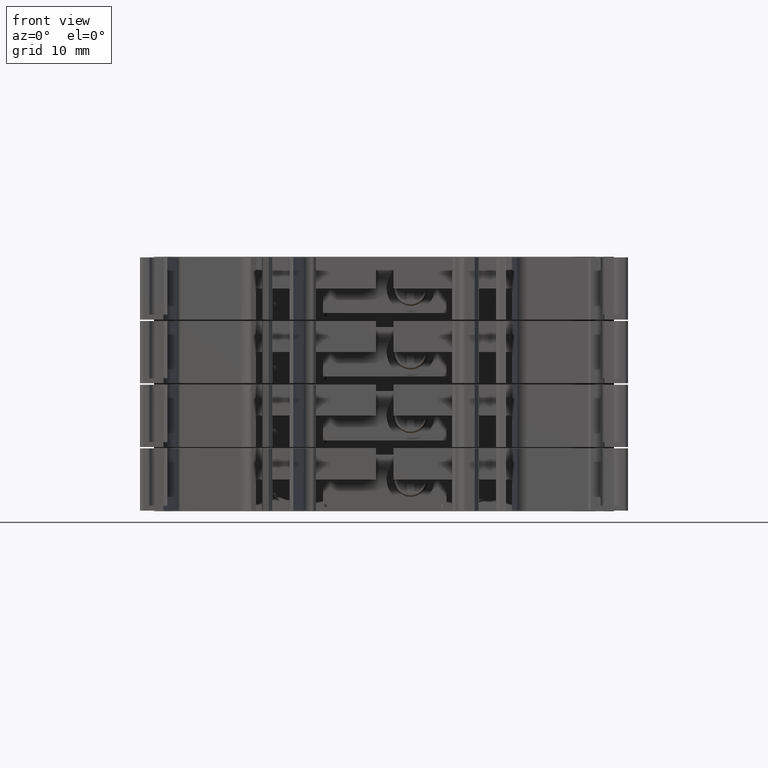
[diagram: clean part render]
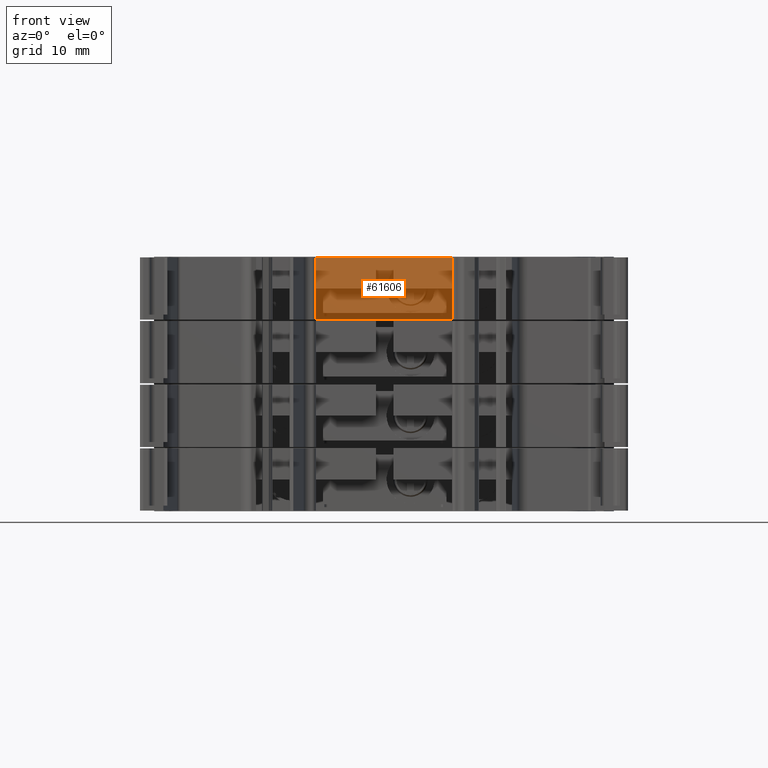
[diagram: same view with one face highlighted and labeled with its STEP entity id]
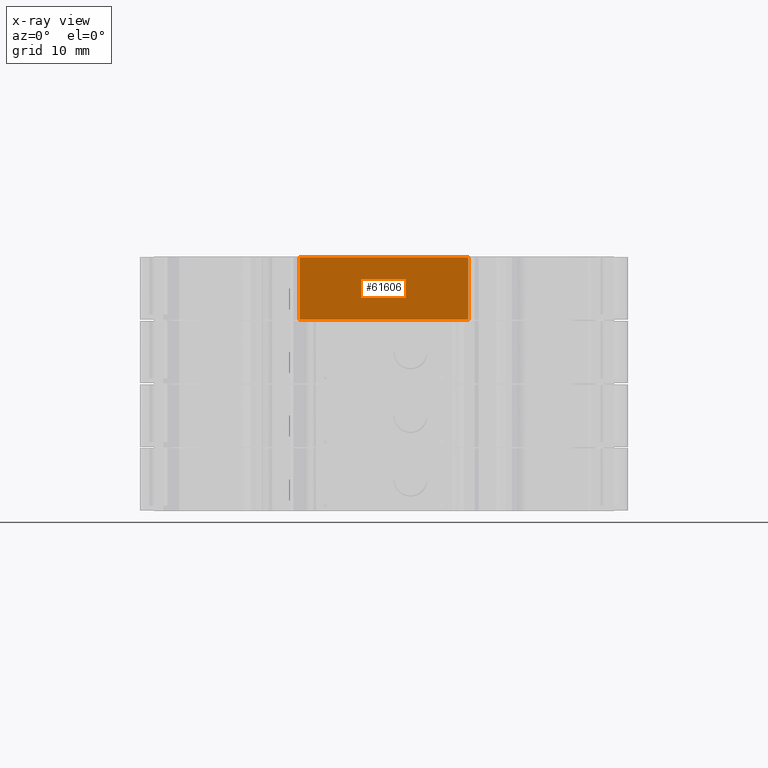
[diagram: x-ray of the same camera — body ghosted, the highlighted face saturated]
A machine part, front view. The second image highlights one B-rep face of the part: STEP entity #61606.
The next image is the same camera in x-ray: the body ghosted, the highlighted face saturated — about 0% of this face is hidden behind the body in this view.
In plain terms, the highlighted planar face has unit normal (0, 1, 0).
Its self-contained STEP definition (entity closure, byte-faithful):
#3836 = VECTOR ( 'NONE', #41808, 1000.000000000000000 ) ;
#3870 = VECTOR ( 'NONE', #42376, 1000.000000000000000 ) ;
#3883 = VECTOR ( 'NONE', #42189, 1000.000000000000000 ) ;
#3920 = VECTOR ( 'NONE', #42168, 1000.000000000000000 ) ;
#7336 = ORIENTED_EDGE ( 'NONE', *, *, #38829, .T. ) ;
#7340 = ORIENTED_EDGE ( 'NONE', *, *, #41214, .T. ) ;
#7371 = ORIENTED_EDGE ( 'NONE', *, *, #38767, .T. ) ;
#7383 = ORIENTED_EDGE ( 'NONE', *, *, #38822, .T. ) ;
#7613 = ORIENTED_EDGE ( 'NONE', *, *, #38864, .T. ) ;
#17388 = EDGE_LOOP ( 'NONE', ( #7371, #7613, #7383, #7336, #7340 ) ) ;
#27636 = CARTESIAN_POINT ( 'NONE',  ( 472.2252140059309800, 109.5896888965323900, 35.79999999999999700 ) ) ;
#27675 = PLANE ( 'NONE',  #91554 ) ;
#27676 = DIRECTION ( 'NONE',  ( 0.0000000000000000000, 1.000000000000000000, 0.0000000000000000000 ) ) ;
#27688 = FACE_OUTER_BOUND ( 'NONE', #17388, .T. ) ;
#27717 = DIRECTION ( 'NONE',  ( 0.0000000000000000000, -0.0000000000000000000, 1.000000000000000000 ) ) ;
#38767 = EDGE_CURVE ( 'NONE', #49640, #47348, #41830, .T. ) ;
#38822 = EDGE_CURVE ( 'NONE', #49851, #47339, #42183, .T. ) ;
#38829 = EDGE_CURVE ( 'NONE', #47339, #49632, #42188, .T. ) ;
#38864 = EDGE_CURVE ( 'NONE', #47348, #49851, #42299, .T. ) ;
#41214 = EDGE_CURVE ( 'NONE', #49632, #49640, #68930, .T. ) ;
#41808 = DIRECTION ( 'NONE',  ( -0.0000000000000000000, 0.0000000000000000000, -1.000000000000000000 ) ) ;
#41830 = LINE ( 'NONE', #41834, #3836 ) ;
#41834 = CARTESIAN_POINT ( 'NONE',  ( 484.1631970774939800, 109.5896888965323900, 35.79999999999999700 ) ) ;
#42155 = CARTESIAN_POINT ( 'NONE',  ( 460.2872217880940900, 109.5896888965323900, 35.79999999999999700 ) ) ;
#42163 = CARTESIAN_POINT ( 'NONE',  ( 472.2252140059309800, 109.5896888965323900, 27.00000000000000000 ) ) ;
#42168 = DIRECTION ( 'NONE',  ( -1.000000000000000000, -0.0000000000000000000, 0.0000000000000000000 ) ) ;
#42183 = LINE ( 'NONE', #42163, #3920 ) ;
#42188 = LINE ( 'NONE', #42155, #3883 ) ;
#42189 = DIRECTION ( 'NONE',  ( 0.0000000000000000000, -0.0000000000000000000, 1.000000000000000000 ) ) ;
#42299 = LINE ( 'NONE', #42400, #3870 ) ;
#42376 = DIRECTION ( 'NONE',  ( -1.000000000000000000, -0.0000000000000000000, 0.0000000000000000000 ) ) ;
#42400 = CARTESIAN_POINT ( 'NONE',  ( 472.2252140059309800, 109.5896888965323900, 27.00000000000000000 ) ) ;
#47339 = VERTEX_POINT ( 'NONE', #53871 ) ;
#47348 = VERTEX_POINT ( 'NONE', #53828 ) ;
#49632 = VERTEX_POINT ( 'NONE', #54253 ) ;
#49640 = VERTEX_POINT ( 'NONE', #54255 ) ;
#49851 = VERTEX_POINT ( 'NONE', #54374 ) ;
#53828 = CARTESIAN_POINT ( 'NONE',  ( 484.1631970774939800, 109.5896888965323900, 27.00000000000000000 ) ) ;
#53871 = CARTESIAN_POINT ( 'NONE',  ( 460.2872217880940900, 109.5896888965323900, 27.00000000000000000 ) ) ;
#54253 = CARTESIAN_POINT ( 'NONE',  ( 460.2872217880940900, 109.5896888965323900, 35.79999999999999700 ) ) ;
#54255 = CARTESIAN_POINT ( 'NONE',  ( 484.1631970774939800, 109.5896888965323900, 35.79999999999999700 ) ) ;
#54374 = CARTESIAN_POINT ( 'NONE',  ( 472.2252094327940300, 109.5896892178474400, 27.00000000000000000 ) ) ;
#61606 = ADVANCED_FACE ( 'NONE', ( #27688 ), #27675, .T. ) ;
#68930 = B_SPLINE_CURVE_WITH_KNOTS ( 'NONE', 3,
 ( #81302, #81303, #81307, #81310 ),
 .UNSPECIFIED., .F., .F.,
 ( 4, 4 ),
 ( 0.0000000000000000000, 1.000000000000000000 ),
 .UNSPECIFIED. ) ;
#81302 = CARTESIAN_POINT ( 'NONE',  ( 460.2872217880940900, 109.5896888965323900, 35.79999999999999700 ) ) ;
#81303 = CARTESIAN_POINT ( 'NONE',  ( 468.2458802178940100, 109.5896888965323900, 35.79999999999999700 ) ) ;
#81307 = CARTESIAN_POINT ( 'NONE',  ( 476.2045386476939900, 109.5896888965323900, 35.79999999999999700 ) ) ;
#81310 = CARTESIAN_POINT ( 'NONE',  ( 484.1631970774939800, 109.5896888965323900, 35.79999999999999700 ) ) ;
#91554 = AXIS2_PLACEMENT_3D ( 'NONE', #27636, #27676, #27717 ) ;